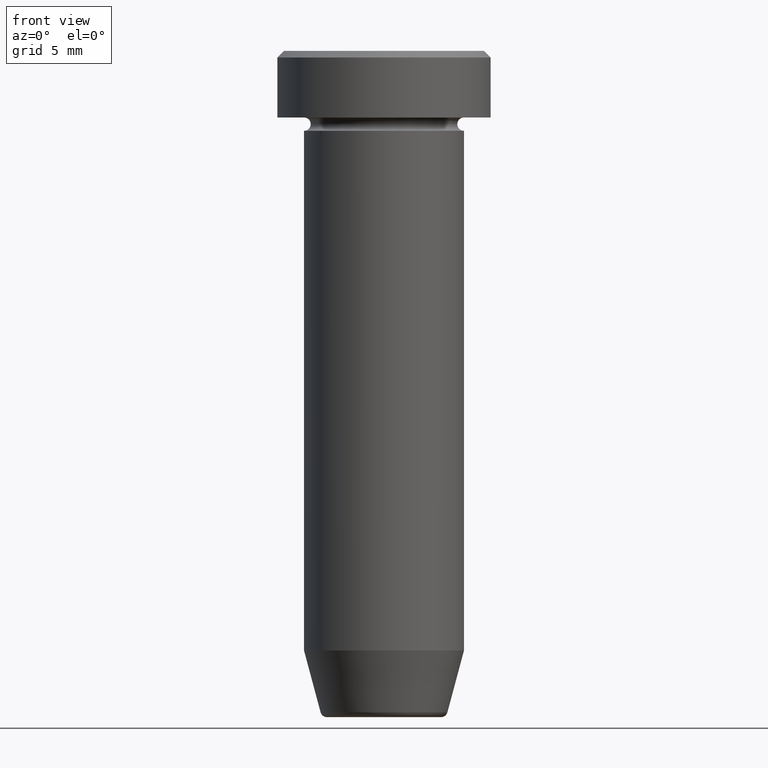
[diagram: clean part render]
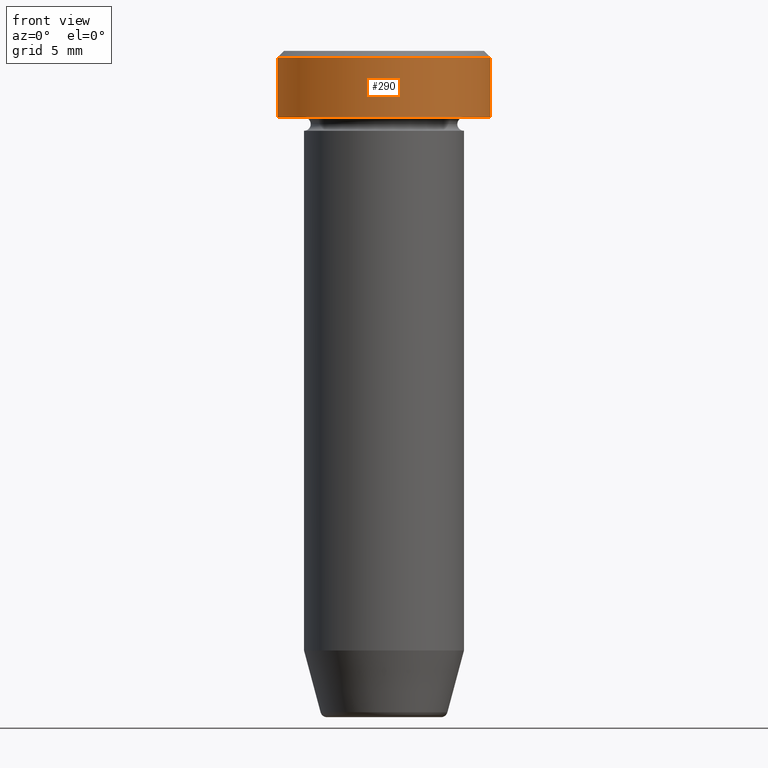
[diagram: same view with one face highlighted and labeled with its STEP entity id]
A machine part, front view. The second image highlights one B-rep face of the part: STEP entity #290.
In plain terms, the highlighted cylindrical surface (partial cylindrical patch) has radius 8 mm, axis along (-0, -0, 1).
Its self-contained STEP definition (entity closure, byte-faithful):
#15 = CARTESIAN_POINT ( 'NONE',  ( -8.000000000000000000, 9.797174393178825657E-16, -0.5000000000000004441 ) ) ;
#42 = DIRECTION ( 'NONE',  ( -0.000000000000000000, -0.000000000000000000, 1.000000000000000000 ) ) ;
#44 = CARTESIAN_POINT ( 'NONE',  ( -8.000000000000000000, 9.797174393178825657E-16, -5.000000000000000000 ) ) ;
#52 = ORIENTED_EDGE ( 'NONE', *, *, #510, .F. ) ;
#69 = CARTESIAN_POINT ( 'NONE',  ( -8.000000000000000000, 9.797174393178825657E-16, 0.000000000000000000 ) ) ;
#88 = CARTESIAN_POINT ( 'NONE',  ( 8.000000000000000000, 0.000000000000000000, -0.5000000000000004441 ) ) ;
#92 = LINE ( 'NONE', #406, #453 ) ;
#111 = LINE ( 'NONE', #69, #509 ) ;
#124 = CARTESIAN_POINT ( 'NONE',  ( 0.000000000000000000, 0.000000000000000000, 0.000000000000000000 ) ) ;
#143 = EDGE_CURVE ( 'NONE', #582, #357, #241, .T. ) ;
#149 = ORIENTED_EDGE ( 'NONE', *, *, #258, .T. ) ;
#163 = CARTESIAN_POINT ( 'NONE',  ( 0.000000000000000000, 0.000000000000000000, -0.5000000000000004441 ) ) ;
#207 = DIRECTION ( 'NONE',  ( 0.000000000000000000, 0.000000000000000000, -1.000000000000000000 ) ) ;
#229 = DIRECTION ( 'NONE',  ( 1.000000000000000000, 0.000000000000000000, 0.000000000000000000 ) ) ;
#241 = CIRCLE ( 'NONE', #441, 8.000000000000000000 ) ;
#254 = EDGE_CURVE ( 'NONE', #586, #271, #581, .T. ) ;
#258 = EDGE_CURVE ( 'NONE', #271, #582, #92, .T. ) ;
#269 = ORIENTED_EDGE ( 'NONE', *, *, #143, .T. ) ;
#271 = VERTEX_POINT ( 'NONE', #278 ) ;
#278 = CARTESIAN_POINT ( 'NONE',  ( 8.000000000000000000, 0.000000000000000000, -5.000000000000000000 ) ) ;
#283 = DIRECTION ( 'NONE',  ( -0.000000000000000000, -0.000000000000000000, 1.000000000000000000 ) ) ;
#290 = ADVANCED_FACE ( 'NONE', ( #551 ), #469, .T. ) ;
#357 = VERTEX_POINT ( 'NONE', #15 ) ;
#378 = AXIS2_PLACEMENT_3D ( 'NONE', #124, #42, #229 ) ;
#380 = DIRECTION ( 'NONE',  ( -0.000000000000000000, -0.000000000000000000, 1.000000000000000000 ) ) ;
#406 = CARTESIAN_POINT ( 'NONE',  ( 8.000000000000000000, 0.000000000000000000, 0.000000000000000000 ) ) ;
#441 = AXIS2_PLACEMENT_3D ( 'NONE', #163, #207, #445 ) ;
#445 = DIRECTION ( 'NONE',  ( 1.000000000000000000, 0.000000000000000000, 0.000000000000000000 ) ) ;
#450 = DIRECTION ( 'NONE',  ( -0.000000000000000000, -0.000000000000000000, 1.000000000000000000 ) ) ;
#453 = VECTOR ( 'NONE', #283, 1000.000000000000000 ) ;
#466 = ORIENTED_EDGE ( 'NONE', *, *, #254, .T. ) ;
#469 = CYLINDRICAL_SURFACE ( 'NONE', #378, 8.000000000000000000 ) ;
#504 = DIRECTION ( 'NONE',  ( 1.000000000000000000, 0.000000000000000000, 0.000000000000000000 ) ) ;
#509 = VECTOR ( 'NONE', #450, 1000.000000000000000 ) ;
#510 = EDGE_CURVE ( 'NONE', #586, #357, #111, .T. ) ;
#517 = AXIS2_PLACEMENT_3D ( 'NONE', #588, #380, #504 ) ;
#551 = FACE_OUTER_BOUND ( 'NONE', #598, .T. ) ;
#581 = CIRCLE ( 'NONE', #517, 8.000000000000000000 ) ;
#582 = VERTEX_POINT ( 'NONE', #88 ) ;
#586 = VERTEX_POINT ( 'NONE', #44 ) ;
#588 = CARTESIAN_POINT ( 'NONE',  ( 0.000000000000000000, 0.000000000000000000, -5.000000000000000000 ) ) ;
#598 = EDGE_LOOP ( 'NONE', ( #52, #466, #149, #269 ) ) ;